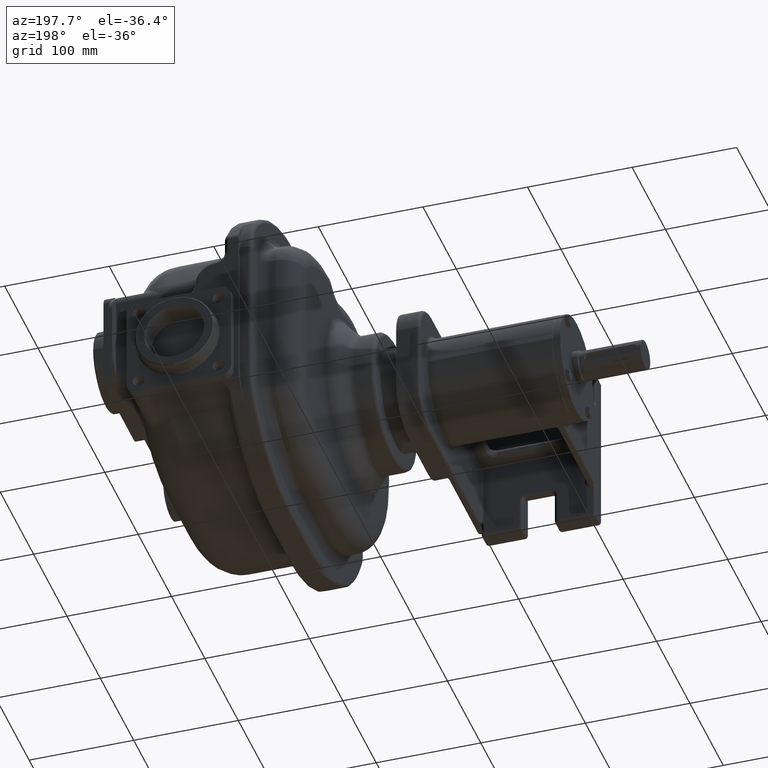
[diagram: clean part render]
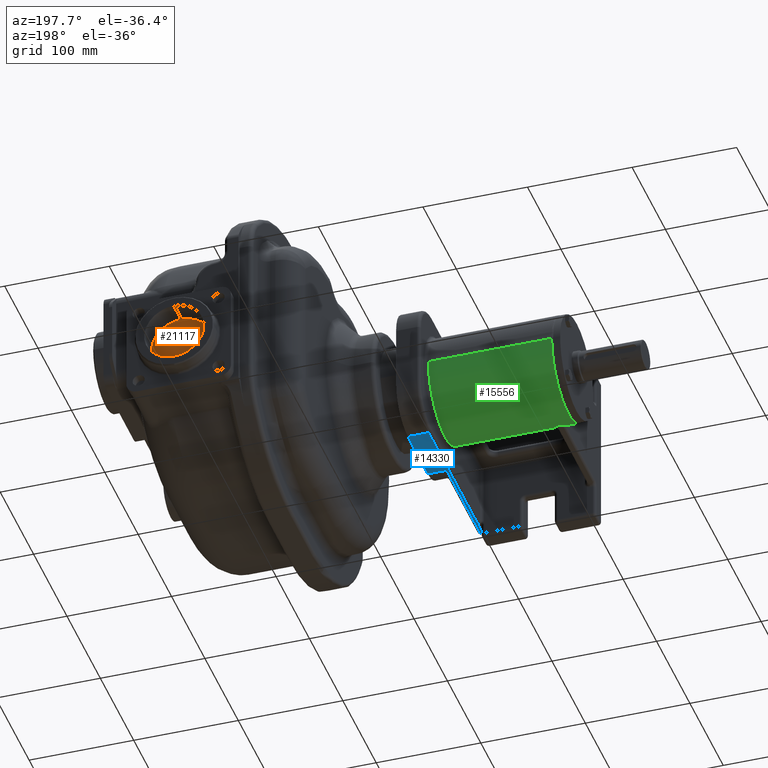
[diagram: same view with three faces highlighted in distinct colors, each labeled with its STEP entity id]
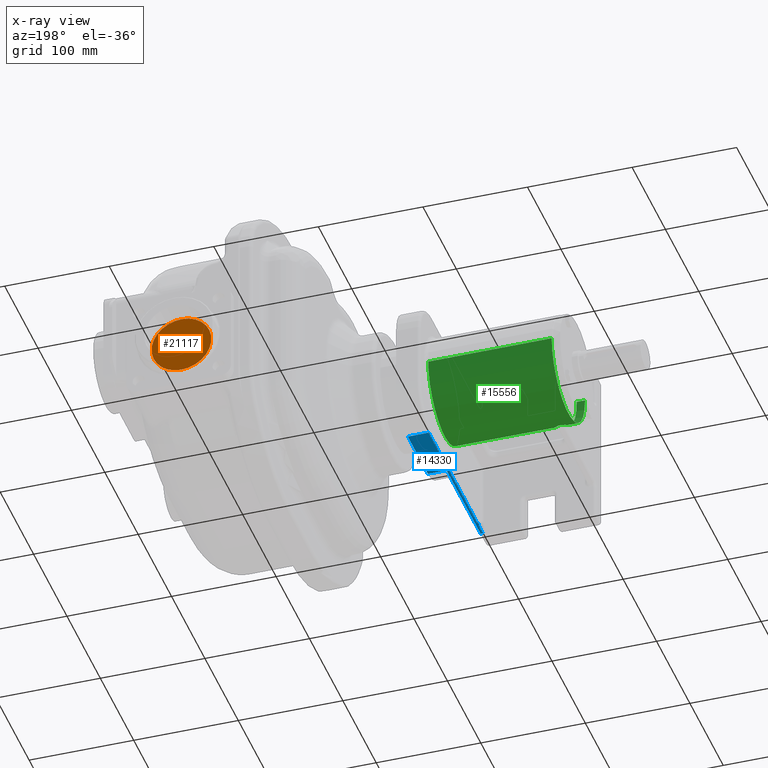
[diagram: x-ray of the same camera — body ghosted, the three highlighted faces saturated]
A machine part, auxiliary view with three faces highlighted in distinct colors.
The next image is the same camera in x-ray (body ghosted, the three faces saturated) — at least one of them is partly hidden behind the body in this view.
Their STEP definitions:

[orange] entity #21117 — the highlighted planar face has unit normal (0, 1, 0).
#8240=CARTESIAN_POINT('',(2.7E1,1.99E2,-4.3E1));
#8241=DIRECTION('',(0.E0,1.E0,0.E0));
#8242=DIRECTION('',(0.E0,0.E0,1.E0));
#8243=AXIS2_PLACEMENT_3D('',#8240,#8241,#8242);
#8245=CARTESIAN_POINT('',(2.7E1,1.99E2,-4.3E1));
#8246=DIRECTION('',(0.E0,1.E0,0.E0));
#8247=DIRECTION('',(0.E0,0.E0,-1.E0));
#8248=AXIS2_PLACEMENT_3D('',#8245,#8246,#8247);
#8900=CARTESIAN_POINT('',(2.7E1,1.99E2,-1.44E1));
#8901=CARTESIAN_POINT('',(2.7E1,1.99E2,-7.16E1));
#8902=VERTEX_POINT('',#8900);
#8903=VERTEX_POINT('',#8901);
#21107=CARTESIAN_POINT('',(-2.75E1,1.99E2,6.876547467006E1));
#21108=DIRECTION('',(0.E0,1.E0,0.E0));
#21109=DIRECTION('',(0.E0,0.E0,-1.E0));
#21110=AXIS2_PLACEMENT_3D('',#21107,#21108,#21109);
#21111=PLANE('',#21110);
#21112=ORIENTED_EDGE('',*,*,#21097,.F.);
#21114=ORIENTED_EDGE('',*,*,#21113,.F.);
#21115=EDGE_LOOP('',(#21112,#21114));
#21116=FACE_OUTER_BOUND('',#21115,.F.);
#21117=ADVANCED_FACE('',(#21116),#21111,.T.);
#8244=CIRCLE('',#8243,2.86E1);
#8249=CIRCLE('',#8248,2.86E1);
#21097=EDGE_CURVE('',#8902,#8903,#8244,.T.);
#21113=EDGE_CURVE('',#8903,#8902,#8249,.T.);

[blue] entity #14330 — the highlighted planar face has unit normal (0, 0, -1).
#3176=DIRECTION('',(0.E0,1.E0,-2.273704203055E-10));
#3177=VECTOR('',#3176,1.439994365315E2);
#3178=CARTESIAN_POINT('',(-1.555E2,-1.139994365315E2,-6.499999996726E1));
#3179=LINE('',#3178,#3177);
#3180=CARTESIAN_POINT('',(-1.563038475775E2,-1.170000000003E2,-6.5E1));
#3181=CARTESIAN_POINT('',(-1.562635716270E2,-1.169302398863E2,
-6.499999998990E1));
#3182=CARTESIAN_POINT('',(-1.561858850619E2,-1.167892011630E2,
-6.500000000469E1));
#3183=CARTESIAN_POINT('',(-1.560778418536E2,-1.165728762983E2,
-6.499999999874E1));
#3184=CARTESIAN_POINT('',(-1.559786212225E2,-1.163524139908E2,
-6.500000000034E1));
#3185=CARTESIAN_POINT('',(-1.558883549067E2,-1.161281266651E2,
-6.499999999991E1));
#3186=CARTESIAN_POINT('',(-1.558071927952E2,-1.159003758543E2,
-6.500000000002E1));
#3187=CARTESIAN_POINT('',(-1.557352725786E2,-1.156695507181E2,-6.5E1));
#3188=CARTESIAN_POINT('',(-1.556727057314E2,-1.154360091672E2,
-6.499999999999E1));
#3189=CARTESIAN_POINT('',(-1.556195975396E2,-1.152001451076E2,
-6.500000000005E1));
#3190=CARTESIAN_POINT('',(-1.555760296443E2,-1.149623190689E2,
-6.499999999983E1));
#3191=CARTESIAN_POINT('',(-1.555420794725E2,-1.147229521791E2,
-6.500000000064E1));
#3192=CARTESIAN_POINT('',(-1.555177948504E2,-1.144824068478E2,
-6.499999999761E1));
#3193=CARTESIAN_POINT('',(-1.555032186624E2,-1.142409999614E2,
-6.500000000893E1));
#3194=CARTESIAN_POINT('',(-1.554999924142E2,-1.140799968296E2,
-6.499999998075E1));
#3195=CARTESIAN_POINT('',(-1.555E2,-1.139994365315E2,-6.499999996726E1));
#3197=CARTESIAN_POINT('',(-1.615E2,-1.2E2,-6.5E1));
#3198=DIRECTION('',(0.E0,0.E0,1.E0));
#3199=DIRECTION('',(1.E0,4.736951571734E-14,0.E0));
#3200=AXIS2_PLACEMENT_3D('',#3197,#3198,#3199);
#3202=DIRECTION('',(0.E0,1.E0,0.E0));
#3203=VECTOR('',#3202,1.2E1);
#3204=CARTESIAN_POINT('',(-1.555E2,-1.32E2,-6.5E1));
#3205=LINE('',#3204,#3203);
#3206=DIRECTION('',(-1.E0,0.E0,0.E0));
#3207=VECTOR('',#3206,2.E0);
#3208=CARTESIAN_POINT('',(-1.535E2,-1.32E2,-6.5E1));
#3209=LINE('',#3208,#3207);
#3210=DIRECTION('',(0.E0,1.E0,0.E0));
#3211=VECTOR('',#3210,1.02E2);
#3212=CARTESIAN_POINT('',(-1.535E2,-1.32E2,-6.5E1));
#3213=LINE('',#3212,#3211);
#3214=DIRECTION('',(1.E0,0.E0,0.E0));
#3215=VECTOR('',#3214,1.8E1);
#3216=CARTESIAN_POINT('',(-1.535E2,-3.E1,-6.5E1));
#3217=LINE('',#3216,#3215);
#3218=DIRECTION('',(0.E0,-1.E0,0.E0));
#3219=VECTOR('',#3218,6.E1);
#3220=CARTESIAN_POINT('',(-1.355E2,3.E1,-6.5E1));
#3221=LINE('',#3220,#3219);
#3227=DIRECTION('',(1.E0,0.E0,0.E0));
#3228=VECTOR('',#3227,2.E1);
#3229=CARTESIAN_POINT('',(-1.555E2,3.E1,-6.5E1));
#3230=LINE('',#3229,#3228);
#7008=CARTESIAN_POINT('',(-1.535E2,-3.E1,-6.5E1));
#8768=CARTESIAN_POINT('',(-1.355E2,3.E1,-6.5E1));
#8769=CARTESIAN_POINT('',(-1.355E2,-3.E1,-6.5E1));
#8770=VERTEX_POINT('',#8768);
#8771=VERTEX_POINT('',#8769);
#9481=CARTESIAN_POINT('',(-1.555E2,3.E1,-6.5E1));
#9482=VERTEX_POINT('',#9481);
#9486=VERTEX_POINT('',#7008);
#9493=CARTESIAN_POINT('',(-1.535E2,-1.32E2,-6.5E1));
#9494=CARTESIAN_POINT('',(-1.555E2,-1.32E2,-6.5E1));
#9495=VERTEX_POINT('',#9493);
#9496=VERTEX_POINT('',#9494);
#9501=CARTESIAN_POINT('',(-1.555E2,-1.2E2,-6.5E1));
#9502=VERTEX_POINT('',#9501);
#9509=VERTEX_POINT('',#3180);
#9510=VERTEX_POINT('',#3195);
#14307=CARTESIAN_POINT('',(-1.345E2,3.E1,-6.5E1));
#14308=DIRECTION('',(0.E0,0.E0,-1.E0));
#14309=DIRECTION('',(0.E0,-1.E0,0.E0));
#14310=AXIS2_PLACEMENT_3D('',#14307,#14308,#14309);
#14311=PLANE('',#14310);
#14313=ORIENTED_EDGE('',*,*,#14312,.F.);
#14315=ORIENTED_EDGE('',*,*,#14314,.F.);
#14317=ORIENTED_EDGE('',*,*,#14316,.F.);
#14319=ORIENTED_EDGE('',*,*,#14318,.F.);
#14321=ORIENTED_EDGE('',*,*,#14320,.F.);
#14323=ORIENTED_EDGE('',*,*,#14322,.F.);
#14325=ORIENTED_EDGE('',*,*,#14324,.T.);
#14326=ORIENTED_EDGE('',*,*,#14296,.T.);
#14327=ORIENTED_EDGE('',*,*,#14063,.F.);
#14328=EDGE_LOOP('',(#14313,#14315,#14317,#14319,#14321,#14323,#14325,#14326,
#14327));
#14329=FACE_OUTER_BOUND('',#14328,.F.);
#14330=ADVANCED_FACE('',(#14329),#14311,.T.);
#3196=B_SPLINE_CURVE_WITH_KNOTS('',3,(#3180,#3181,#3182,#3183,#3184,#3185,#3186,
#3187,#3188,#3189,#3190,#3191,#3192,#3193,#3194,#3195),.UNSPECIFIED.,.F.,.F.,(4,
1,1,1,1,1,1,1,1,1,1,1,1,4),(0.E0,7.692307692308E-2,1.538461538462E-1,
2.307692307692E-1,3.076923076923E-1,3.846153846154E-1,4.615384615385E-1,
5.384615384615E-1,6.153846153846E-1,6.923076923077E-1,7.692307692308E-1,
8.461538461538E-1,9.230769230769E-1,1.E0),.UNSPECIFIED.);
#3201=CIRCLE('',#3200,6.E0);
#14063=EDGE_CURVE('',#8770,#8771,#3221,.T.);
#14296=EDGE_CURVE('',#9486,#8771,#3217,.T.);
#14312=EDGE_CURVE('',#9482,#8770,#3230,.T.);
#14314=EDGE_CURVE('',#9510,#9482,#3179,.T.);
#14316=EDGE_CURVE('',#9509,#9510,#3196,.T.);
#14318=EDGE_CURVE('',#9502,#9509,#3201,.T.);
#14320=EDGE_CURVE('',#9496,#9502,#3205,.T.);
#14322=EDGE_CURVE('',#9495,#9496,#3209,.T.);
#14324=EDGE_CURVE('',#9495,#9486,#3213,.T.);

[green] entity #15556 — the highlighted cylindrical surface (partial cylindrical patch) has radius 50 mm, axis along (1, 0, 0).
#4076=CARTESIAN_POINT('',(-2.655E2,-2.120019344740E1,-4.528301886792E1));
#4077=CARTESIAN_POINT('',(-2.655467386325E2,-2.120019346348E1,
-4.528301886256E1));
#4078=CARTESIAN_POINT('',(-2.656404306053E2,-2.120239529155E1,
-4.528198812618E1));
#4079=CARTESIAN_POINT('',(-2.657815227059E2,-2.121238389572E1,
-4.527731042087E1));
#4080=CARTESIAN_POINT('',(-2.659234389423E2,-2.122917555006E1,
-4.526944078396E1));
#4081=CARTESIAN_POINT('',(-2.660665625876E2,-2.125296932802E1,
-4.525827654959E1));
#4082=CARTESIAN_POINT('',(-2.662113401707E2,-2.128405907943E1,
-4.524366607226E1));
#4083=CARTESIAN_POINT('',(-2.663581717914E2,-2.132282092644E1,
-4.522541373682E1));
#4084=CARTESIAN_POINT('',(-2.665074648876E2,-2.136972250369E1,
-4.520327445906E1));
#4085=CARTESIAN_POINT('',(-2.666596080177E2,-2.142532034552E1,
-4.517695341261E1));
#4086=CARTESIAN_POINT('',(-2.668150092863E2,-2.149027800780E1,
-4.514609552134E1));
#4087=CARTESIAN_POINT('',(-2.669740696446E2,-2.156536672971E1,
-4.511028262991E1));
#4088=CARTESIAN_POINT('',(-2.671371741757E2,-2.165146894574E1,
-4.506902871680E1));
#4089=CARTESIAN_POINT('',(-2.673046878390E2,-2.174958024210E1,
-4.502177511374E1));
#4090=CARTESIAN_POINT('',(-2.674769458661E2,-2.186080921333E1,
-4.496788589427E1));
#4091=CARTESIAN_POINT('',(-2.676542324988E2,-2.198637568621E1,
-4.490664309783E1));
#4092=CARTESIAN_POINT('',(-2.678367642582E2,-2.212760193102E1,
-4.483724431429E1));
#4093=CARTESIAN_POINT('',(-2.680246664194E2,-2.228588862654E1,
-4.475880677999E1));
#4094=CARTESIAN_POINT('',(-2.682179409709E2,-2.246268255870E1,
-4.467037488164E1));
#4095=CARTESIAN_POINT('',(-2.684164312804E2,-2.265942784168E1,
-4.457093560926E1));
#4096=CARTESIAN_POINT('',(-2.686197825058E2,-2.287749915743E1,
-4.445944365527E1));
#4097=CARTESIAN_POINT('',(-2.688273985290E2,-2.311811532597E1,
-4.433485842015E1));
#4098=CARTESIAN_POINT('',(-2.690383958756E2,-2.338223242533E1,
-4.419619528177E1));
#4099=CARTESIAN_POINT('',(-2.692515827645E2,-2.367041553215E1,
-4.404259430619E1));
#4100=CARTESIAN_POINT('',(-2.694654482699E2,-2.398272153186E1,
-4.387339203058E1));
#4101=CARTESIAN_POINT('',(-2.696781825746E2,-2.431859840747E1,
-4.368819503995E1));
#4102=CARTESIAN_POINT('',(-2.698877283171E2,-2.467682482022E1,
-4.348694301246E1));
#4103=CARTESIAN_POINT('',(-2.700918646960E2,-2.505550648410E1,
-4.326995031784E1));
#4104=CARTESIAN_POINT('',(-2.702883101595E2,-2.545213807490E1,
-4.303791699440E1));
#4105=CARTESIAN_POINT('',(-2.704748498303E2,-2.586373287152E1,
-4.279190121142E1));
#4106=CARTESIAN_POINT('',(-2.706494431316E2,-2.628698892216E1,
-4.253326411079E1));
#4107=CARTESIAN_POINT('',(-2.708103093369E2,-2.671846890824E1,
-4.226359503733E1));
#4108=CARTESIAN_POINT('',(-2.709559852957E2,-2.715477480518E1,
-4.198462507649E1));
#4109=CARTESIAN_POINT('',(-2.710853490180E2,-2.759268963174E1,
-4.169814504176E1));
#4110=CARTESIAN_POINT('',(-2.711976121792E2,-2.802926030130E1,
-4.140594827605E1));
#4111=CARTESIAN_POINT('',(-2.712923039196E2,-2.846189678657E1,
-4.110974997467E1));
#4112=CARTESIAN_POINT('',(-2.713692164495E2,-2.888828128852E1,
-4.081123116759E1));
#4113=CARTESIAN_POINT('',(-2.714284071658E2,-2.930663156884E1,
-4.051182862715E1));
#4114=CARTESIAN_POINT('',(-2.714700882073E2,-2.971521781094E1,
-4.021305319271E1));
#4115=CARTESIAN_POINT('',(-2.714946639606E2,-3.011281803560E1,
-3.991614261690E1));
#4116=CARTESIAN_POINT('',(-2.714999999472E2,-3.036997531056E1,
-3.972014799656E1));
#4117=CARTESIAN_POINT('',(-2.715E2,-3.049666014197E1,-3.962264150943E1));
#4119=DIRECTION('',(-1.E0,0.E0,0.E0));
#4120=VECTOR('',#4119,2.E0);
#4121=CARTESIAN_POINT('',(-2.635E2,-2.120019344740E1,-4.528301886792E1));
#4122=LINE('',#4121,#4120);
#4123=CARTESIAN_POINT('',(-2.575E2,-3.049666014197E1,-3.962264150943E1));
#4124=CARTESIAN_POINT('',(-2.575000000515E2,-3.036997462007E1,
-3.972014852742E1));
#4125=CARTESIAN_POINT('',(-2.575053360664E2,-3.011281674893E1,
-3.991614359941E1));
#4126=CARTESIAN_POINT('',(-2.575299120214E2,-2.971521546049E1,
-4.021305490904E1));
#4127=CARTESIAN_POINT('',(-2.575715923142E2,-2.930663568259E1,
-4.051182563734E1));
#4128=CARTESIAN_POINT('',(-2.576307829893E2,-2.888828447777E1,
-4.081122890073E1));
#4129=CARTESIAN_POINT('',(-2.577076943653E2,-2.846190622083E1,
-4.110974341264E1));
#4130=CARTESIAN_POINT('',(-2.578023852426E2,-2.802927224803E1,
-4.140594018593E1));
#4131=CARTESIAN_POINT('',(-2.579146474791E2,-2.759270227050E1,
-4.169813667376E1));
#4132=CARTESIAN_POINT('',(-2.580440100113E2,-2.715478853045E1,
-4.198461619653E1));
#4133=CARTESIAN_POINT('',(-2.581896852879E2,-2.671848287870E1,
-4.226358620387E1));
#4134=CARTESIAN_POINT('',(-2.583505510276E2,-2.628700334586E1,
-4.253325519786E1));
#4135=CARTESIAN_POINT('',(-2.585251447883E2,-2.586374603288E1,
-4.279189326588E1));
#4136=CARTESIAN_POINT('',(-2.587116852491E2,-2.545214914384E1,
-4.303791045638E1));
#4137=CARTESIAN_POINT('',(-2.589081308983E2,-2.505551609500E1,
-4.326994475797E1));
#4138=CARTESIAN_POINT('',(-2.591122668955E2,-2.467683287916E1,
-4.348693844725E1));
#4139=CARTESIAN_POINT('',(-2.593218141184E2,-2.431860414798E1,
-4.368819185180E1));
#4140=CARTESIAN_POINT('',(-2.595345499152E2,-2.398272599698E1,
-4.387338959117E1));
#4141=CARTESIAN_POINT('',(-2.597484154637E2,-2.367042018756E1,
-4.404259180260E1));
#4142=CARTESIAN_POINT('',(-2.599616008218E2,-2.338223756809E1,
-4.419619256031E1));
#4143=CARTESIAN_POINT('',(-2.601725961080E2,-2.311812013056E1,
-4.433485591791E1));
#4144=CARTESIAN_POINT('',(-2.603802104800E2,-2.287750240179E1,
-4.445944198778E1));
#4145=CARTESIAN_POINT('',(-2.605835632623E2,-2.265943165897E1,
-4.457093366470E1));
#4146=CARTESIAN_POINT('',(-2.607820557718E2,-2.246268895553E1,
-4.467037166062E1));
#4147=CARTESIAN_POINT('',(-2.609753305124E2,-2.228589662477E1,
-4.475880279687E1));
#4148=CARTESIAN_POINT('',(-2.611632314339E2,-2.212760925707E1,
-4.483724070137E1));
#4149=CARTESIAN_POINT('',(-2.613457619430E2,-2.198638036552E1,
-4.490664081088E1));
#4150=CARTESIAN_POINT('',(-2.615230479099E2,-2.186081079535E1,
-4.496788512757E1));
#4151=CARTESIAN_POINT('',(-2.616953068326E2,-2.174958087347E1,
-4.502177480861E1));
#4152=CARTESIAN_POINT('',(-2.618628232855E2,-2.165147007890E1,
-4.506902817198E1));
#4153=CARTESIAN_POINT('',(-2.620259296371E2,-2.156536794443E1,
-4.511028204955E1));
#4154=CARTESIAN_POINT('',(-2.621849912824E2,-2.149027827229E1,
-4.514609539628E1));
#4155=CARTESIAN_POINT('',(-2.623403949374E2,-2.142531932014E1,
-4.517695389940E1));
#4156=CARTESIAN_POINT('',(-2.624925394556E2,-2.136972093983E1,
-4.520327519858E1));
#4157=CARTESIAN_POINT('',(-2.626418351762E2,-2.132281874598E1,
-4.522541476514E1));
#4158=CARTESIAN_POINT('',(-2.627886708128E2,-2.128405630262E1,
-4.524366737867E1));
#4159=CARTESIAN_POINT('',(-2.629334519795E2,-2.125296647485E1,
-4.525827788940E1));
#4160=CARTESIAN_POINT('',(-2.630765792483E2,-2.122917282407E1,
-4.526944206227E1));
#4161=CARTESIAN_POINT('',(-2.632185006335E2,-2.121238157480E1,
-4.527731150815E1));
#4162=CARTESIAN_POINT('',(-2.633595885563E2,-2.120239454329E1,
-4.528198847620E1));
#4163=CARTESIAN_POINT('',(-2.634532690645E2,-2.120019346684E1,
-4.528301886149E1));
#4164=CARTESIAN_POINT('',(-2.635E2,-2.120019344740E1,-4.528301886792E1));
#4166=CARTESIAN_POINT('',(-2.575E2,0.E0,0.E0));
#4167=DIRECTION('',(1.E0,0.E0,0.E0));
#4168=DIRECTION('',(0.E0,-9.912396631369E-1,-1.320754716981E-1));
#4169=AXIS2_PLACEMENT_3D('',#4166,#4167,#4168);
#4171=DIRECTION('',(-1.E0,0.E0,0.E0));
#4172=VECTOR('',#4171,9.6E1);
#4173=CARTESIAN_POINT('',(-1.615E2,-4.956198315684E1,-6.603773584906E0));
#4174=LINE('',#4173,#4172);
#4175=CARTESIAN_POINT('',(-1.615E2,-1.293226019900E-14,0.E0));
#4176=DIRECTION('',(1.E0,0.E0,0.E0));
#4177=DIRECTION('',(0.E0,-9.912396631369E-1,-1.320754716981E-1));
#4178=AXIS2_PLACEMENT_3D('',#4175,#4176,#4177);
#4180=DIRECTION('',(-1.E0,0.E0,0.E0));
#4181=VECTOR('',#4180,1.18E2);
#4182=CARTESIAN_POINT('',(-1.615E2,5.E1,0.E0));
#4183=LINE('',#4182,#4181);
#4184=CARTESIAN_POINT('',(-2.795E2,0.E0,0.E0));
#4185=DIRECTION('',(-1.E0,0.E0,0.E0));
#4186=DIRECTION('',(0.E0,1.E0,0.E0));
#4187=AXIS2_PLACEMENT_3D('',#4184,#4185,#4186);
#4189=DIRECTION('',(-1.E0,0.E0,0.E0));
#4190=VECTOR('',#4189,8.E0);
#4191=CARTESIAN_POINT('',(-2.715E2,-5.E1,0.E0));
#4192=LINE('',#4191,#4190);
#4193=CARTESIAN_POINT('',(-2.715E2,0.E0,0.E0));
#4194=DIRECTION('',(-1.E0,0.E0,0.E0));
#4195=DIRECTION('',(0.E0,-6.099332028394E-1,-7.924528301887E-1));
#4196=AXIS2_PLACEMENT_3D('',#4193,#4194,#4195);
#9119=CARTESIAN_POINT('',(-2.795E2,5.E1,0.E0));
#9120=CARTESIAN_POINT('',(-2.795E2,-5.E1,0.E0));
#9121=VERTEX_POINT('',#9119);
#9122=VERTEX_POINT('',#9120);
#9375=CARTESIAN_POINT('',(-1.615E2,5.E1,0.E0));
#9376=VERTEX_POINT('',#9375);
#9388=VERTEX_POINT('',#4076);
#9389=VERTEX_POINT('',#4117);
#9390=CARTESIAN_POINT('',(-2.635E2,-2.120019344740E1,-4.528301886792E1));
#9391=VERTEX_POINT('',#9390);
#9392=VERTEX_POINT('',#4123);
#9393=CARTESIAN_POINT('',(-2.575E2,-4.956198315684E1,-6.603773584906E0));
#9394=VERTEX_POINT('',#9393);
#9395=CARTESIAN_POINT('',(-1.615E2,-4.956198315684E1,-6.603773584906E0));
#9396=VERTEX_POINT('',#9395);
#9415=CARTESIAN_POINT('',(-2.715E2,-5.E1,0.E0));
#9416=VERTEX_POINT('',#9415);
#15531=CARTESIAN_POINT('',(-2.895E2,0.E0,0.E0));
#15532=DIRECTION('',(1.E0,0.E0,0.E0));
#15533=DIRECTION('',(0.E0,-1.E0,0.E0));
#15534=AXIS2_PLACEMENT_3D('',#15531,#15532,#15533);
#15535=CYLINDRICAL_SURFACE('',#15534,5.E1);
#15537=ORIENTED_EDGE('',*,*,#15536,.F.);
#15539=ORIENTED_EDGE('',*,*,#15538,.F.);
#15541=ORIENTED_EDGE('',*,*,#15540,.F.);
#15543=ORIENTED_EDGE('',*,*,#15542,.F.);
#15544=ORIENTED_EDGE('',*,*,#15524,.F.);
#15545=ORIENTED_EDGE('',*,*,#14522,.T.);
#15547=ORIENTED_EDGE('',*,*,#15546,.T.);
#15549=ORIENTED_EDGE('',*,*,#15548,.T.);
#15551=ORIENTED_EDGE('',*,*,#15550,.F.);
#15553=ORIENTED_EDGE('',*,*,#15552,.F.);
#15554=EDGE_LOOP('',(#15537,#15539,#15541,#15543,#15544,#15545,#15547,#15549,
#15551,#15553));
#15555=FACE_OUTER_BOUND('',#15554,.F.);
#15556=ADVANCED_FACE('',(#15555),#15535,.T.);
#4118=B_SPLINE_CURVE_WITH_KNOTS('',3,(#4076,#4077,#4078,#4079,#4080,#4081,#4082,
#4083,#4084,#4085,#4086,#4087,#4088,#4089,#4090,#4091,#4092,#4093,#4094,#4095,
#4096,#4097,#4098,#4099,#4100,#4101,#4102,#4103,#4104,#4105,#4106,#4107,#4108,
#4109,#4110,#4111,#4112,#4113,#4114,#4115,#4116,#4117),.UNSPECIFIED.,.F.,.F.,(4,
1,1,1,1,1,1,1,1,1,1,1,1,1,1,1,1,1,1,1,1,1,1,1,1,1,1,1,1,1,1,1,1,1,1,1,1,1,1,4),(
0.E0,2.564102564103E-2,5.128205128205E-2,7.692307692308E-2,1.025641025641E-1,
1.282051282051E-1,1.538461538462E-1,1.794871794872E-1,2.051282051282E-1,
2.307692307692E-1,2.564102564103E-1,2.820512820513E-1,3.076923076923E-1,
3.333333333333E-1,3.589743589744E-1,3.846153846154E-1,4.102564102564E-1,
4.358974358974E-1,4.615384615385E-1,4.871794871795E-1,5.128205128205E-1,
5.384615384615E-1,5.641025641026E-1,5.897435897436E-1,6.153846153846E-1,
6.410256410256E-1,6.666666666667E-1,6.923076923077E-1,7.179487179487E-1,
7.435897435897E-1,7.692307692308E-1,7.948717948718E-1,8.205128205128E-1,
8.461538461538E-1,8.717948717949E-1,8.974358974359E-1,9.230769230769E-1,
9.487179487179E-1,9.743589743590E-1,1.E0),.UNSPECIFIED.);
#4165=B_SPLINE_CURVE_WITH_KNOTS('',3,(#4123,#4124,#4125,#4126,#4127,#4128,#4129,
#4130,#4131,#4132,#4133,#4134,#4135,#4136,#4137,#4138,#4139,#4140,#4141,#4142,
#4143,#4144,#4145,#4146,#4147,#4148,#4149,#4150,#4151,#4152,#4153,#4154,#4155,
#4156,#4157,#4158,#4159,#4160,#4161,#4162,#4163,#4164),.UNSPECIFIED.,.F.,.F.,(4,
1,1,1,1,1,1,1,1,1,1,1,1,1,1,1,1,1,1,1,1,1,1,1,1,1,1,1,1,1,1,1,1,1,1,1,1,1,1,4),(
0.E0,2.564102564103E-2,5.128205128205E-2,7.692307692308E-2,1.025641025641E-1,
1.282051282051E-1,1.538461538462E-1,1.794871794872E-1,2.051282051282E-1,
2.307692307692E-1,2.564102564103E-1,2.820512820513E-1,3.076923076923E-1,
3.333333333333E-1,3.589743589744E-1,3.846153846154E-1,4.102564102564E-1,
4.358974358974E-1,4.615384615385E-1,4.871794871795E-1,5.128205128205E-1,
5.384615384615E-1,5.641025641026E-1,5.897435897436E-1,6.153846153846E-1,
6.410256410256E-1,6.666666666667E-1,6.923076923077E-1,7.179487179487E-1,
7.435897435897E-1,7.692307692308E-1,7.948717948718E-1,8.205128205128E-1,
8.461538461538E-1,8.717948717949E-1,8.974358974359E-1,9.230769230769E-1,
9.487179487179E-1,9.743589743590E-1,1.E0),.UNSPECIFIED.);
#4170=CIRCLE('',#4169,5.E1);
#4179=CIRCLE('',#4178,5.E1);
#4188=CIRCLE('',#4187,5.E1);
#4197=CIRCLE('',#4196,5.E1);
#14522=EDGE_CURVE('',#9396,#9376,#4179,.T.);
#15524=EDGE_CURVE('',#9396,#9394,#4174,.T.);
#15536=EDGE_CURVE('',#9388,#9389,#4118,.T.);
#15538=EDGE_CURVE('',#9391,#9388,#4122,.T.);
#15540=EDGE_CURVE('',#9392,#9391,#4165,.T.);
#15542=EDGE_CURVE('',#9394,#9392,#4170,.T.);
#15546=EDGE_CURVE('',#9376,#9121,#4183,.T.);
#15548=EDGE_CURVE('',#9121,#9122,#4188,.T.);
#15550=EDGE_CURVE('',#9416,#9122,#4192,.T.);
#15552=EDGE_CURVE('',#9389,#9416,#4197,.T.);